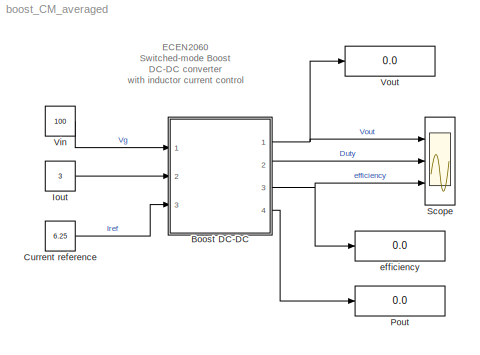
MODEL boost_CM_averaged
KIND model
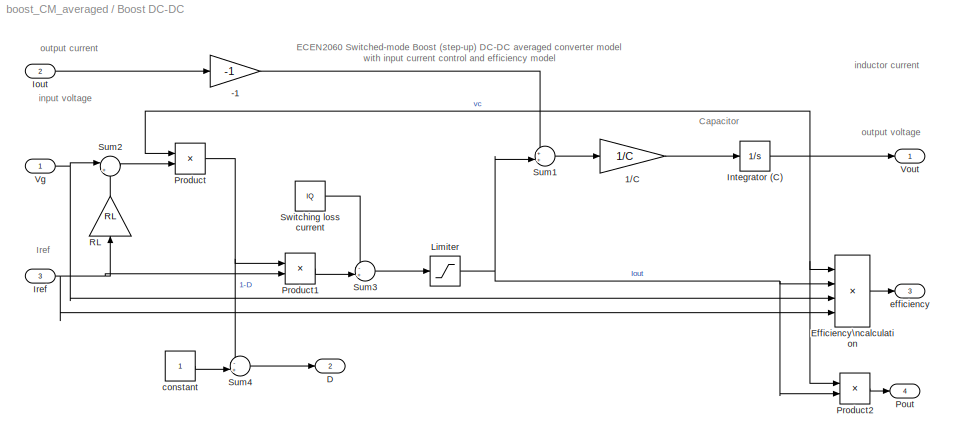
BLOCK [SubSystem] Boost DC-DC
  FunctionWithSeparateData = off
  MaskCallbackString = |||
  MaskDescription = Averaged model of a boost (step-up) DC-DC converter with input current control. Model includes losses due to input port resistance RL and output-port switching-loss current Isw.
  MaskDisplay = text(0.5,0.9,'Boost','horizontalAlignment', 'center');\ntext(0.5,0.8,'DC-DC','horizontalAlignment', 'center');\ntext(0.5,0.7,'(averaged, C)','horizontalAlignment', 'center');\ntext(0.5,0.6,'current control','horizontalAlignment', 'center');
  MaskEnableString = on,on,on,on
  MaskHideContents = off
  MaskIconFrame = on
  MaskIconOpaque = off
  MaskIconRotate = none
  MaskIconUnits = normalized
  MaskPromptString = Capacitance|Initial capacitor voltage|Input port series resistance|Switching loss current
  MaskStyleString = edit,edit,edit,edit
  MaskTabNameString = ,,,
  MaskToolTipString = on,on,on,on
  MaskTunableValueString = on,on,on,on
  MaskValueString = 10e-6|200|0.5|0.03
  MaskVarAliasString = ,,,
  MaskVariables = C=@1;Vo=@2;RL=@3;IQ=@4;
  MaskVisibilityString = on,on,on,on
  MinAlgLoopOccurrences = off
  Ports = [3, 4]
  RTWSystemCode = Auto
BLOCK [Gain] Boost DC-DC/-1
  Gain = -1
  OutDataTypeMode = Inherit via internal rule
  ParameterDataTypeMode = Inherit via internal rule
  SaturateOnIntegerOverflow = off
BLOCK [Gain] Boost DC-DC/1//C
  Gain = 1/C
  OutDataTypeMode = Inherit via internal rule
  ParameterDataTypeMode = Inherit via internal rule
  SaturateOnIntegerOverflow = off
BLOCK [Outport] Boost DC-DC/D
  BusOutputAsStruct = off
  IconDisplay = Port number
  Port = 2
BLOCK [Product] Boost DC-DC/Efficiency\ncalculation
  InputSameDT = off
  Inputs = **//
  OutDataTypeMode = Inherit via internal rule
  Ports = [4, 1]
  SaturateOnIntegerOverflow = off
BLOCK [Integrator] Boost DC-DC/Integrator (C)
  IgnoreLimit = off
  InitialCondition = Vo
  Ports = [1, 1]
BLOCK [Inport] Boost DC-DC/Iout
  IconDisplay = Port number
  Port = 2
BLOCK [Inport] Boost DC-DC/Iref
  IconDisplay = Port number
  Port = 3
BLOCK [Saturate] Boost DC-DC/Limiter
  LowerLimit = 0
  UpperLimit = inf
BLOCK [Outport] Boost DC-DC/Pout
  BusOutputAsStruct = off
  IconDisplay = Port number
  Port = 4
BLOCK [Product] Boost DC-DC/Product
  InputSameDT = off
  Inputs = /*
  OutDataTypeMode = Inherit via internal rule
  Ports = [2, 1]
  SaturateOnIntegerOverflow = off
BLOCK [Product] Boost DC-DC/Product1
  InputSameDT = off
  Inputs = **
  OutDataTypeMode = Inherit via internal rule
  Ports = [2, 1]
  SaturateOnIntegerOverflow = off
BLOCK [Product] Boost DC-DC/Product2
  InputSameDT = off
  Inputs = **
  OutDataTypeMode = Inherit via internal rule
  Ports = [2, 1]
  SaturateOnIntegerOverflow = off
BLOCK [Gain] Boost DC-DC/RL
  Gain = RL
  OutDataTypeMode = Inherit via internal rule
  ParameterDataTypeMode = Inherit via internal rule
  SaturateOnIntegerOverflow = off
BLOCK [Sum] Boost DC-DC/Sum1
  IconShape = round
  InputSameDT = off
  Inputs = ++|
  OutDataTypeMode = Inherit via internal rule
  Ports = [2, 1]
  SaturateOnIntegerOverflow = off
BLOCK [Sum] Boost DC-DC/Sum2
  IconShape = round
  InputSameDT = off
  Inputs = |+-
  OutDataTypeMode = Inherit via internal rule
  Ports = [2, 1]
  SaturateOnIntegerOverflow = off
BLOCK [Sum] Boost DC-DC/Sum3
  IconShape = round
  InputSameDT = off
  Inputs = -+|
  OutDataTypeMode = Inherit via internal rule
  Ports = [2, 1]
  SaturateOnIntegerOverflow = off
BLOCK [Sum] Boost DC-DC/Sum4
  IconShape = round
  InputSameDT = off
  Inputs = -+|
  OutDataTypeMode = Inherit via internal rule
  Ports = [2, 1]
  SaturateOnIntegerOverflow = off
BLOCK [Constant] Boost DC-DC/Switching loss current
  ConRadixGroup = Use specified scaling
  FramePeriod = inf
  OutDataType = sfix(16)
  OutDataTypeMode = Inherit from 'Constant value'
  OutScaling = 2^0
  SampleTime = inf
  SamplingMode = Sample based
  Value = IQ
  VectorParams1D = on
BLOCK [Inport] Boost DC-DC/Vg
  IconDisplay = Port number
BLOCK [Outport] Boost DC-DC/Vout
  BusOutputAsStruct = off
  IconDisplay = Port number
BLOCK [Constant] Boost DC-DC/constant
  ConRadixGroup = Use specified scaling
  FramePeriod = inf
  OutDataType = sfix(16)
  OutDataTypeMode = Inherit from 'Constant value'
  OutScaling = 2^0
  SampleTime = inf
  SamplingMode = Sample based
  Value = 1
  VectorParams1D = on
BLOCK [Outport] Boost DC-DC/efficiency
  BusOutputAsStruct = off
  IconDisplay = Port number
  Port = 3
BLOCK [Constant] Current reference
  ConRadixGroup = Use specified scaling
  FramePeriod = inf
  OutDataType = sfix(16)
  OutDataTypeMode = Inherit from 'Constant value'
  OutScaling = 2^0
  SampleTime = inf
  SamplingMode = Sample based
  Value = 6.25
  VectorParams1D = on
BLOCK [Constant] Iout
  ConRadixGroup = Use specified scaling
  FramePeriod = inf
  OutDataType = sfix(16)
  OutDataTypeMode = Inherit from 'Constant value'
  OutScaling = 2^0
  SampleTime = inf
  SamplingMode = Sample based
  Value = 3
  VectorParams1D = on
BLOCK [Display] Pout
  Decimation = 1
  Lockdown = off
  Ports = [1]
BLOCK [Scope] Scope
  DataFormat = StructureWithTime
  Floating = off
  LimitDataPoints = off
  NumInputPorts = 3
  Ports = [3]
  SampleTime = 0
  TimeRange = 0.035
  YMax = 200~0.516~0.9591599999999999
  YMin = 199.8~0.5152~0.95915
BLOCK [Constant] Vin
  ConRadixGroup = Use specified scaling
  FramePeriod = inf
  OutDataType = sfix(16)
  OutDataTypeMode = Inherit from 'Constant value'
  OutScaling = 2^0
  SampleTime = inf
  SamplingMode = Sample based
  Value = 100
  VectorParams1D = on
BLOCK [Display] Vout
  Decimation = 1
  Lockdown = off
  Ports = [1]
BLOCK [Display] efficiency
  Decimation = 1
  Lockdown = off
  Ports = [1]
ANNOTATION (root): ECEN2060\nSwitched-mode Boost\nDC-DC converter\nwith inductor current control
ANNOTATION Boost DC-DC: Capacitor
ANNOTATION Boost DC-DC: ECEN2060 Switched-mode Boost (step-up) DC-DC averaged converter model\nwith input current control and efficiency model
ANNOTATION Boost DC-DC: Iref
ANNOTATION Boost DC-DC: inductor current
ANNOTATION Boost DC-DC: input voltage
ANNOTATION Boost DC-DC: output current
ANNOTATION Boost DC-DC: output voltage
LINE Boost DC-DC/-1:1 -> Boost DC-DC/Sum1:1
LINE Boost DC-DC/1//C:1 -> Boost DC-DC/Integrator (C):1
LINE Boost DC-DC/Efficiency\ncalculation:1 -> Boost DC-DC/efficiency:1
NET Boost DC-DC/Integrator (C):1 -> Boost DC-DC/Efficiency\ncalculation:1, Boost DC-DC/Product2:1, Boost DC-DC/Product:1, Boost DC-DC/Vout:1
LINE Boost DC-DC/Iout:1 -> Boost DC-DC/-1:1
NET Boost DC-DC/Iref:1 -> Boost DC-DC/Efficiency\ncalculation:4, Boost DC-DC/Product1:2, Boost DC-DC/RL:1
NET Boost DC-DC/Limiter:1 -> Boost DC-DC/Efficiency\ncalculation:2, Boost DC-DC/Product2:2, Boost DC-DC/Sum1:2
LINE Boost DC-DC/Product1:1 -> Boost DC-DC/Sum3:2
LINE Boost DC-DC/Product2:1 -> Boost DC-DC/Pout:1
NET Boost DC-DC/Product:1 -> Boost DC-DC/Product1:1, Boost DC-DC/Sum4:1
LINE Boost DC-DC/RL:1 -> Boost DC-DC/Sum2:2
LINE Boost DC-DC/Sum1:1 -> Boost DC-DC/1//C:1
LINE Boost DC-DC/Sum2:1 -> Boost DC-DC/Product:2
LINE Boost DC-DC/Sum3:1 -> Boost DC-DC/Limiter:1
LINE Boost DC-DC/Sum4:1 -> Boost DC-DC/D:1
LINE Boost DC-DC/Switching loss current:1 -> Boost DC-DC/Sum3:1
NET Boost DC-DC/Vg:1 -> Boost DC-DC/Efficiency\ncalculation:3, Boost DC-DC/Sum2:1
LINE Boost DC-DC/constant:1 -> Boost DC-DC/Sum4:2
NET Boost DC-DC:1 -> Scope:1, Vout:1
LINE Boost DC-DC:2 -> Scope:2
NET Boost DC-DC:3 -> Scope:3, efficiency:1
LINE Boost DC-DC:4 -> Pout:1
LINE Current reference:1 -> Boost DC-DC:3
LINE Iout:1 -> Boost DC-DC:2
LINE Vin:1 -> Boost DC-DC:1
note: NET lines group one-source signal fan-out (src -> all destinations, sorted); 1:1 wires keep LINE
